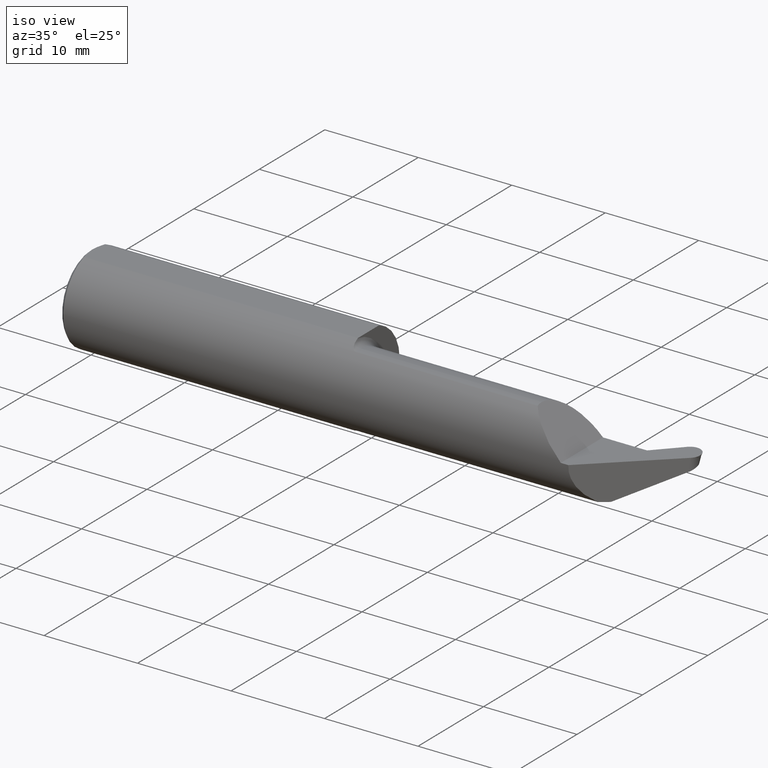
[diagram: clean part render]
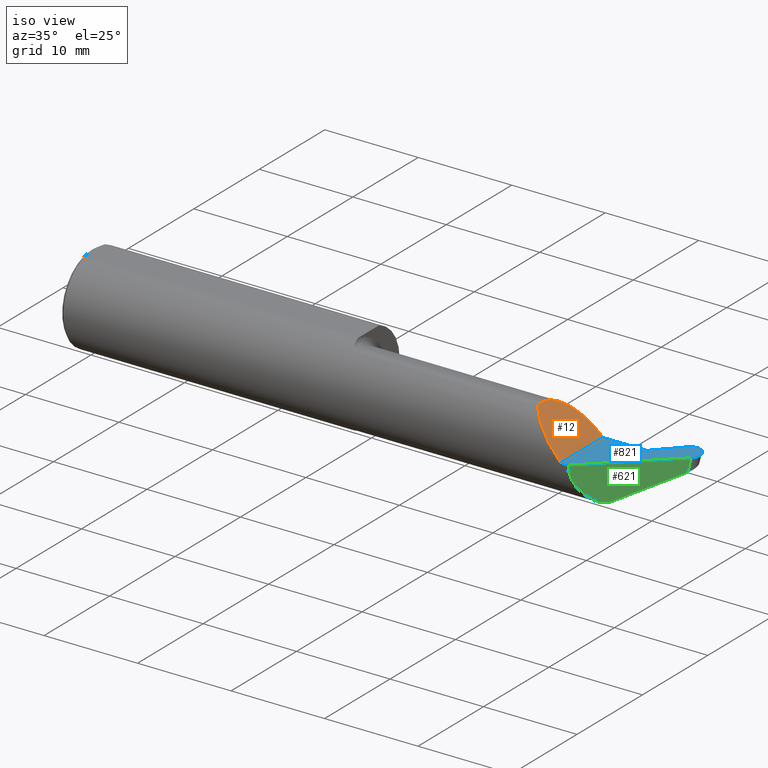
[diagram: same view with three faces highlighted in distinct colors, each labeled with its STEP entity id]
A machine part, iso view with three faces highlighted in distinct colors.
Their STEP definitions:

[orange] entity #12 — the highlighted planar face has unit normal (-0.7071, 0, -0.7071).
#6 = EDGE_LOOP ( 'NONE', ( #199, #384, #219, #587 ) ) ;
#12 = ADVANCED_FACE ( 'NONE', ( #478 ), #551, .F. ) ;
#15 = VERTEX_POINT ( 'NONE', #677 ) ;
#49 = CARTESIAN_POINT ( 'NONE',  ( 1.958844637866757887, -0.1038401262696877214, 0.1511553621332437647 ) ) ;
#143 = EDGE_CURVE ( 'NONE', #15, #474, #502, .T. ) ;
#149 = VERTEX_POINT ( 'NONE', #497 ) ;
#169 = CARTESIAN_POINT ( 'NONE',  ( 1.958000000000002405, -0.08534999999999998144, 0.1519999999999996632 ) ) ;
#199 = ORIENTED_EDGE ( 'NONE', *, *, #390, .F. ) ;
#206 = AXIS2_PLACEMENT_3D ( 'NONE', #813, #362, #803 ) ;
#219 = ORIENTED_EDGE ( 'NONE', *, *, #143, .T. ) ;
#232 = CARTESIAN_POINT ( 'NONE',  ( 1.960526878236144244, -0.1129504686584656276, 0.1494731217638574639 ) ) ;
#236 = CARTESIAN_POINT ( 'NONE',  ( 1.958000000000001961, 0.003689538519289367602, 0.1519999999999996632 ) ) ;
#237 = CARTESIAN_POINT ( 'NONE',  ( 1.958000000000002405, -0.08534999999999998144, 0.1519999999999996632 ) ) ;
#239 = VECTOR ( 'NONE', #318, 39.37007874015748143 ) ;
#274 =( BOUNDED_CURVE ( )  B_SPLINE_CURVE ( 3, ( #507, #767, #442, #232 ),
 .UNSPECIFIED., .F., .T. ) 
 B_SPLINE_CURVE_WITH_KNOTS ( ( 4, 4 ),
 ( 4.712388980384689674, 5.636073291855361767 ),
 .UNSPECIFIED. ) 
 CURVE ( )  GEOMETRIC_REPRESENTATION_ITEM ( )  RATIONAL_B_SPLINE_CURVE ( ( 1.000000000000000000, 0.9301554373620524174, 0.9301554373620524174, 1.000000000000000000 ) ) 
 REPRESENTATION_ITEM ( '' )  );
#318 = DIRECTION ( 'NONE',  ( -0.000000000000000000, 1.000000000000000000, -0.000000000000000000 ) ) ;
#362 = DIRECTION ( 'NONE',  ( -0.7071067811865515695, 0.000000000000000000, -0.7071067811865434649 ) ) ;
#384 = ORIENTED_EDGE ( 'NONE', *, *, #624, .F. ) ;
#390 = EDGE_CURVE ( 'NONE', #149, #425, #491, .T. ) ;
#407 = CARTESIAN_POINT ( 'NONE',  ( 2.020960461480711956, 0.06664999999999969560, 0.08903953851928933516 ) ) ;
#425 = VERTEX_POINT ( 'NONE', #237 ) ;
#442 = CARTESIAN_POINT ( 'NONE',  ( 1.996600064346651049, -0.1606879575236968005, 0.1133999356533502284 ) ) ;
#459 =( BOUNDED_CURVE ( )  B_SPLINE_CURVE ( 3, ( #804, #236, #407, #480 ),
 .UNSPECIFIED., .F., .T. ) 
 B_SPLINE_CURVE_WITH_KNOTS ( ( 4, 4 ),
 ( 0.000000000000000000, 1.570796326794896780 ),
 .UNSPECIFIED. ) 
 CURVE ( )  GEOMETRIC_REPRESENTATION_ITEM ( )  RATIONAL_B_SPLINE_CURVE ( ( 1.000000000000000000, 0.8047378541243649375, 0.8047378541243649375, 1.000000000000000000 ) ) 
 REPRESENTATION_ITEM ( '' )  );
#474 = VERTEX_POINT ( 'NONE', #549 ) ;
#478 = FACE_OUTER_BOUND ( 'NONE', #6, .T. ) ;
#480 = CARTESIAN_POINT ( 'NONE',  ( 2.110000000000000320, 0.06664999999999968172, -4.745349621061712245E-17 ) ) ;
#491 =( BOUNDED_CURVE ( )  B_SPLINE_CURVE ( 3, ( #612, #49, #681, #169 ),
 .UNSPECIFIED., .F., .T. ) 
 B_SPLINE_CURVE_WITH_KNOTS ( ( 4, 4 ),
 ( 6.100590318874937523, 6.283185307179586232 ),
 .UNSPECIFIED. ) 
 CURVE ( )  GEOMETRIC_REPRESENTATION_ITEM ( )  RATIONAL_B_SPLINE_CURVE ( ( 1.000000000000000000, 0.9972235185427065218, 0.9972235185427065218, 1.000000000000000000 ) ) 
 REPRESENTATION_ITEM ( '' )  );
#497 = CARTESIAN_POINT ( 'NONE',  ( 1.960526878236144244, -0.1129504686584656276, 0.1494731217638574639 ) ) ;
#502 = LINE ( 'NONE', #756, #239 ) ;
#507 = CARTESIAN_POINT ( 'NONE',  ( 2.110000000000000320, -0.1873499999999999888, -4.745349621061712245E-17 ) ) ;
#549 = CARTESIAN_POINT ( 'NONE',  ( 2.110000000000000320, 0.06664999999999968172, -4.745349621061712245E-17 ) ) ;
#551 = PLANE ( 'NONE',  #206 ) ;
#587 = ORIENTED_EDGE ( 'NONE', *, *, #686, .F. ) ;
#612 = CARTESIAN_POINT ( 'NONE',  ( 1.960526878236144244, -0.1129504686584656276, 0.1494731217638574639 ) ) ;
#624 = EDGE_CURVE ( 'NONE', #15, #149, #274, .T. ) ;
#677 = CARTESIAN_POINT ( 'NONE',  ( 2.110000000000000320, -0.1873499999999999888, -4.745349621061712245E-17 ) ) ;
#681 = CARTESIAN_POINT ( 'NONE',  ( 1.958000000000001961, -0.09461435486697029884, 0.1519999999999996632 ) ) ;
#686 = EDGE_CURVE ( 'NONE', #425, #474, #459, .T. ) ;
#756 = CARTESIAN_POINT ( 'NONE',  ( 2.110000000000000320, 0.2000000000000000111, -4.745349621061712245E-17 ) ) ;
#767 = CARTESIAN_POINT ( 'NONE',  ( 2.050165707162854289, -0.1873499999999999888, 0.05983429283714609970 ) ) ;
#803 = DIRECTION ( 'NONE',  ( -0.7071067811865434649, 0.000000000000000000, 0.7071067811865515695 ) ) ;
#804 = CARTESIAN_POINT ( 'NONE',  ( 1.958000000000002405, -0.08534999999999998144, 0.1519999999999996632 ) ) ;
#813 = CARTESIAN_POINT ( 'NONE',  ( 2.110000000000000320, -0.1873500000000000165, -4.745349621061712245E-17 ) ) ;

[blue] entity #821 — the highlighted planar face has unit normal (-0, 0, -1).
#15 = VERTEX_POINT ( 'NONE', #677 ) ;
#16 = EDGE_CURVE ( 'NONE', #322, #15, #734, .T. ) ;
#43 = ORIENTED_EDGE ( 'NONE', *, *, #143, .F. ) ;
#70 = CARTESIAN_POINT ( 'NONE',  ( 2.467767019416892360, 0.1514603896167064090, -4.745349621061710396E-17 ) ) ;
#74 = CARTESIAN_POINT ( 'NONE',  ( 2.431132501251490829, 0.1845805313186274499, -4.745349621061712245E-17 ) ) ;
#86 = CARTESIAN_POINT ( 'NONE',  ( 2.141702867418015188, -0.1873500000000000165, -1.767807840146319986E-17 ) ) ;
#115 = EDGE_LOOP ( 'NONE', ( #634, #645, #231, #450, #43, #380 ) ) ;
#123 = VERTEX_POINT ( 'NONE', #512 ) ;
#133 = CARTESIAN_POINT ( 'NONE',  ( 2.448246970082820440, 0.1779498025175149378, -4.745349621061711013E-17 ) ) ;
#143 = EDGE_CURVE ( 'NONE', #15, #474, #502, .T. ) ;
#147 = CARTESIAN_POINT ( 'NONE',  ( 2.468948145148677664, 0.1423966646996534247, -4.745349621061712245E-17 ) ) ;
#156 = CARTESIAN_POINT ( 'NONE',  ( 2.169027510930384040, -0.1618693577013822493, 0.000000000000000000 ) ) ;
#163 = LINE ( 'NONE', #230, #439 ) ;
#168 = DIRECTION ( 'NONE',  ( -0.000000000000000000, 0.000000000000000000, -1.000000000000000000 ) ) ;
#170 = DIRECTION ( 'NONE',  ( -1.000000000000000000, -0.000000000000000000, -0.000000000000000000 ) ) ;
#175 = CARTESIAN_POINT ( 'NONE',  ( 2.453681397116281193, 0.1035746854946824336, 0.000000000000000000 ) ) ;
#209 = AXIS2_PLACEMENT_3D ( 'NONE', #662, #168, #462 ) ;
#214 = LINE ( 'NONE', #218, #601 ) ;
#217 = FACE_OUTER_BOUND ( 'NONE', #115, .T. ) ;
#218 = CARTESIAN_POINT ( 'NONE',  ( 2.153755892154001650, -0.08534999999999998144, -4.745349621061712245E-17 ) ) ;
#230 = CARTESIAN_POINT ( 'NONE',  ( 1.169000000000000039, 0.06664999999999968172, -4.745349621061712245E-17 ) ) ;
#231 = ORIENTED_EDGE ( 'NONE', *, *, #313, .F. ) ;
#239 = VECTOR ( 'NONE', #318, 39.37007874015748143 ) ;
#313 = EDGE_CURVE ( 'NONE', #742, #123, #214, .T. ) ;
#318 = DIRECTION ( 'NONE',  ( -0.000000000000000000, 1.000000000000000000, -0.000000000000000000 ) ) ;
#322 = VERTEX_POINT ( 'NONE', #86 ) ;
#325 = CARTESIAN_POINT ( 'NONE',  ( 2.392332127941882103, 0.1704916902143809587, -4.745349621061712245E-17 ) ) ;
#355 = DIRECTION ( 'NONE',  ( -0.7313537016191670181, -0.6819983600625021403, 0.000000000000000000 ) ) ;
#369 = EDGE_CURVE ( 'NONE', #474, #742, #163, .T. ) ;
#380 = ORIENTED_EDGE ( 'NONE', *, *, #16, .F. ) ;
#382 = CARTESIAN_POINT ( 'NONE',  ( 2.412939162104926538, 0.1832131339247096424, -4.745349621061712245E-17 ) ) ;
#388 = VERTEX_POINT ( 'NONE', #463 ) ;
#397 = CARTESIAN_POINT ( 'NONE',  ( 2.409969334684518572, 0.1822622641441629388, -4.745349621061712862E-17 ) ) ;
#421 = CARTESIAN_POINT ( 'NONE',  ( 2.462949161049848179, 0.1122338268527463268, -4.745349621061713478E-17 ) ) ;
#431 = CARTESIAN_POINT ( 'NONE',  ( 2.461000084745684102, 0.1647719059417566689, -4.745349621061712245E-17 ) ) ;
#439 = VECTOR ( 'NONE', #586, 39.37007874015748143 ) ;
#446 = CARTESIAN_POINT ( 'NONE',  ( 2.396612017884213852, 0.1750724780321066543, -4.745349621061711013E-17 ) ) ;
#450 = ORIENTED_EDGE ( 'NONE', *, *, #369, .F. ) ;
#458 = DIRECTION ( 'NONE',  ( 0.6819983600625172393, 0.7313537016191530293, 0.000000000000000000 ) ) ;
#462 = DIRECTION ( 'NONE',  ( -1.000000000000000000, 0.000000000000000000, 0.000000000000000000 ) ) ;
#463 = CARTESIAN_POINT ( 'NONE',  ( 2.453681397116281193, 0.1035746854946824336, 0.000000000000000000 ) ) ;
#474 = VERTEX_POINT ( 'NONE', #549 ) ;
#502 = LINE ( 'NONE', #756, #239 ) ;
#511 = CARTESIAN_POINT ( 'NONE',  ( 2.467923296528796939, 0.1230023735455202660, -4.745349621061712862E-17 ) ) ;
#512 = CARTESIAN_POINT ( 'NONE',  ( 2.392332127941882103, 0.1704916902143809587, -4.745349621061712245E-17 ) ) ;
#523 = CARTESIAN_POINT ( 'NONE',  ( 2.421899764801102251, 0.1847030445123118703, -4.745349621061712862E-17 ) ) ;
#543 = EDGE_CURVE ( 'NONE', #388, #123, #626, .T. ) ;
#549 = CARTESIAN_POINT ( 'NONE',  ( 2.110000000000000320, 0.06664999999999968172, -4.745349621061712245E-17 ) ) ;
#586 = DIRECTION ( 'NONE',  ( 1.000000000000000000, 0.000000000000000000, 0.000000000000000000 ) ) ;
#588 = LINE ( 'NONE', #156, #616 ) ;
#601 = VECTOR ( 'NONE', #458, 39.37007874015748143 ) ;
#605 = VECTOR ( 'NONE', #170, 39.37007874015748143 ) ;
#616 = VECTOR ( 'NONE', #355, 39.37007874015748143 ) ;
#626 = B_SPLINE_CURVE_WITH_KNOTS ( 'NONE', 3,
 ( #175, #421, #511, #147, #70, #650, #431, #709, #701, #133, #704, #74, #523, #775, #382, #397, #643, #446, #325 ),
 .UNSPECIFIED., .F., .F.,
 ( 4, 2, 1, 2, 2, 2, 2, 2, 2, 4 ),
 ( 0.000000000000000000, 0.2500000000000031086, 0.3750000000000044964, 0.4375000000000036637, 0.5000000000000027756, 0.6249999999999981126, 0.7499999999999933387, 0.8124999999999937828, 0.8749999999999942268, 1.000000000000000000 ),
 .UNSPECIFIED. ) ;
#634 = ORIENTED_EDGE ( 'NONE', *, *, #771, .F. ) ;
#643 = CARTESIAN_POINT ( 'NONE',  ( 2.401556305812663439, 0.1785877199917680902, -4.745349621061710396E-17 ) ) ;
#645 = ORIENTED_EDGE ( 'NONE', *, *, #543, .T. ) ;
#650 = CARTESIAN_POINT ( 'NONE',  ( 2.464045568622513116, 0.1595739835437393339, -4.745349621061712862E-17 ) ) ;
#662 = CARTESIAN_POINT ( 'NONE',  ( 2.110000000000000320, 0.2000000000000000111, -4.745349621061712245E-17 ) ) ;
#677 = CARTESIAN_POINT ( 'NONE',  ( 2.110000000000000320, -0.1873499999999999888, -4.745349621061712245E-17 ) ) ;
#687 = CARTESIAN_POINT ( 'NONE',  ( 2.500000000000000000, -0.1873499999999999888, -4.745349621061712245E-17 ) ) ;
#701 = CARTESIAN_POINT ( 'NONE',  ( 2.453023039036284825, 0.1743261084839769215, -4.745349621061712245E-17 ) ) ;
#704 = CARTESIAN_POINT ( 'NONE',  ( 2.437051764764914807, 0.1832212601429893117, -4.745349621061712245E-17 ) ) ;
#709 = CARTESIAN_POINT ( 'NONE',  ( 2.459150219253846359, 0.1673166227726625710, -4.745349621061714094E-17 ) ) ;
#734 = LINE ( 'NONE', #687, #605 ) ;
#742 = VERTEX_POINT ( 'NONE', #783 ) ;
#756 = CARTESIAN_POINT ( 'NONE',  ( 2.110000000000000320, 0.2000000000000000111, -4.745349621061712245E-17 ) ) ;
#771 = EDGE_CURVE ( 'NONE', #388, #322, #588, .T. ) ;
#775 = CARTESIAN_POINT ( 'NONE',  ( 2.418876612735148424, 0.1844213974872827289, -4.745349621061714094E-17 ) ) ;
#783 = CARTESIAN_POINT ( 'NONE',  ( 2.295498185246931833, 0.06665000000000129154, 6.897916184002264281E-15 ) ) ;
#805 = PLANE ( 'NONE',  #209 ) ;
#821 = ADVANCED_FACE ( 'NONE', ( #217 ), #805, .F. ) ;

[green] entity #621 — the highlighted planar face has unit normal (-0.6816, 0.7309, 0.0349).
#3 = ORIENTED_EDGE ( 'NONE', *, *, #473, .T. ) ;
#7 = CARTESIAN_POINT ( 'NONE',  ( 2.243301529027789787, -0.08534999999999996756, -0.1519999999999996632 ) ) ;
#25 = FACE_OUTER_BOUND ( 'NONE', #516, .T. ) ;
#34 = CARTESIAN_POINT ( 'NONE',  ( 2.451182245700235907, 0.1021114557563832931, -0.01816336498588111761 ) ) ;
#41 = LINE ( 'NONE', #174, #561 ) ;
#66 = DIRECTION ( 'NONE',  ( -0.6815829050885316986, 0.7309081807046564627, 0.03489949670248779223 ) ) ;
#86 = CARTESIAN_POINT ( 'NONE',  ( 2.141702867418015188, -0.1873500000000000165, -1.767807840146319986E-17 ) ) ;
#98 = CARTESIAN_POINT ( 'NONE',  ( 2.448683094284190620, 0.1006482260180835281, -0.03632672997176230462 ) ) ;
#113 = CARTESIAN_POINT ( 'NONE',  ( 2.243301529027789787, -0.08534999999999996756, -0.1519999999999996632 ) ) ;
#127 = ORIENTED_EDGE ( 'NONE', *, *, #714, .T. ) ;
#150 = CARTESIAN_POINT ( 'NONE',  ( 2.213833035312448683, -0.1129504686584656831, -0.1494731217638574639 ) ) ;
#156 = CARTESIAN_POINT ( 'NONE',  ( 2.169027510930384040, -0.1618693577013822493, 0.000000000000000000 ) ) ;
#174 = CARTESIAN_POINT ( 'NONE',  ( 2.423946661898040755, 0.07897008013997777742, -0.06541583951153338850 ) ) ;
#191 = ORIENTED_EDGE ( 'NONE', *, *, #771, .T. ) ;
#197 = CARTESIAN_POINT ( 'NONE',  ( 2.546610177810151310, 0.2020557698480204278, -0.2476242554592702205 ) ) ;
#246 =( BOUNDED_CURVE ( )  B_SPLINE_CURVE ( 3, ( #7, #636, #269, #514 ),
 .UNSPECIFIED., .F., .T. ) 
 B_SPLINE_CURVE_WITH_KNOTS ( ( 4, 4 ),
 ( 1.523084436873743730, 1.550918134938522597 ),
 .UNSPECIFIED. ) 
 CURVE ( )  GEOMETRIC_REPRESENTATION_ITEM ( )  RATIONAL_B_SPLINE_CURVE ( ( 1.000000000000000000, 0.9999354414796474133, 0.9999354414796474133, 1.000000000000000000 ) ) 
 REPRESENTATION_ITEM ( '' )  );
#269 = CARTESIAN_POINT ( 'NONE',  ( 2.246327081144900983, -0.08252956411674720882, -0.1519803738930390336 ) ) ;
#291 = CARTESIAN_POINT ( 'NONE',  ( 2.138639136373742033, -0.1873500000000000720, -0.05983429283714602337 ) ) ;
#296 = CARTESIAN_POINT ( 'NONE',  ( 2.247840851845028354, -0.08111982414012910980, -0.1519411254802152111 ) ) ;
#322 = VERTEX_POINT ( 'NONE', #86 ) ;
#331 = ORIENTED_EDGE ( 'NONE', *, *, #663, .F. ) ;
#354 = AXIS2_PLACEMENT_3D ( 'NONE', #197, #66, #713 ) ;
#355 = DIRECTION ( 'NONE',  ( -0.7313537016191670181, -0.6819983600625021403, 0.000000000000000000 ) ) ;
#356 = DIRECTION ( 'NONE',  ( -0.6954206866754740757, -0.6321757989175352810, -0.3416779592054304260 ) ) ;
#359 =( BOUNDED_CURVE ( )  B_SPLINE_CURVE ( 3, ( #150, #528, #291, #736 ),
 .UNSPECIFIED., .F., .T. ) 
 B_SPLINE_CURVE_WITH_KNOTS ( ( 4, 4 ),
 ( 5.407212885630068300, 6.330897197100739504 ),
 .UNSPECIFIED. ) 
 CURVE ( )  GEOMETRIC_REPRESENTATION_ITEM ( )  RATIONAL_B_SPLINE_CURVE ( ( 1.000000000000000000, 0.9301554373620526395, 0.9301554373620526395, 1.000000000000000000 ) ) 
 REPRESENTATION_ITEM ( '' )  );
#388 = VERTEX_POINT ( 'NONE', #463 ) ;
#401 = CARTESIAN_POINT ( 'NONE',  ( 2.453681397116281193, 0.1035746854946824336, 0.000000000000000000 ) ) ;
#415 = CARTESIAN_POINT ( 'NONE',  ( 2.213833035312448683, -0.1129504686584656831, -0.1494731217638574639 ) ) ;
#441 = ORIENTED_EDGE ( 'NONE', *, *, #777, .F. ) ;
#456 = PLANE ( 'NONE',  #354 ) ;
#463 = CARTESIAN_POINT ( 'NONE',  ( 2.453681397116281193, 0.1035746854946824336, 0.000000000000000000 ) ) ;
#473 = EDGE_CURVE ( 'NONE', #700, #631, #694, .T. ) ;
#485 = CARTESIAN_POINT ( 'NONE',  ( 2.233366724749886068, -0.09461435486697031272, -0.1519999999999996632 ) ) ;
#487 = CARTESIAN_POINT ( 'NONE',  ( 2.213833035312448683, -0.1129504686584656831, -0.1494731217638574639 ) ) ;
#514 = CARTESIAN_POINT ( 'NONE',  ( 2.247840851845028354, -0.08111982414012910980, -0.1519411254802152111 ) ) ;
#516 = EDGE_LOOP ( 'NONE', ( #441, #127, #191, #331, #3, #712 ) ) ;
#528 = CARTESIAN_POINT ( 'NONE',  ( 2.164487922858646662, -0.1606879575236968560, -0.1133999356533501590 ) ) ;
#545 = CARTESIAN_POINT ( 'NONE',  ( 2.243301529027789787, -0.08534999999999996756, -0.1519999999999996632 ) ) ;
#561 = VECTOR ( 'NONE', #356, 39.37007874015748854 ) ;
#588 = LINE ( 'NONE', #156, #616 ) ;
#591 = EDGE_CURVE ( 'NONE', #631, #649, #246, .T. ) ;
#593 = CARTESIAN_POINT ( 'NONE',  ( 2.446183942868147110, 0.09918499627978322186, -0.05449009495759068317 ) ) ;
#597 = CARTESIAN_POINT ( 'NONE',  ( 2.446183942868147110, 0.09918499627978322186, -0.05449009495759068317 ) ) ;
#616 = VECTOR ( 'NONE', #355, 39.37007874015748143 ) ;
#621 = ADVANCED_FACE ( 'NONE', ( #25 ), #456, .F. ) ;
#631 = VERTEX_POINT ( 'NONE', #545 ) ;
#636 = CARTESIAN_POINT ( 'NONE',  ( 2.244813875848860274, -0.08393971377387955679, -0.1519999999999996632 ) ) ;
#641 = VERTEX_POINT ( 'NONE', #593 ) ;
#649 = VERTEX_POINT ( 'NONE', #296 ) ;
#663 = EDGE_CURVE ( 'NONE', #700, #322, #359, .T. ) ;
#694 =( BOUNDED_CURVE ( )  B_SPLINE_CURVE ( 3, ( #487, #746, #485, #113 ),
 .UNSPECIFIED., .F., .T. ) 
 B_SPLINE_CURVE_WITH_KNOTS ( ( 4, 4 ),
 ( 1.340489448569094355, 1.523084436873743730 ),
 .UNSPECIFIED. ) 
 CURVE ( )  GEOMETRIC_REPRESENTATION_ITEM ( )  RATIONAL_B_SPLINE_CURVE ( ( 1.000000000000000000, 0.9972235185427065218, 0.9972235185427065218, 1.000000000000000000 ) ) 
 REPRESENTATION_ITEM ( '' )  );
#700 = VERTEX_POINT ( 'NONE', #415 ) ;
#712 = ORIENTED_EDGE ( 'NONE', *, *, #591, .T. ) ;
#713 = DIRECTION ( 'NONE',  ( -0.7313537016191666851, -0.6819983600625023623, 0.000000000000000000 ) ) ;
#714 = EDGE_CURVE ( 'NONE', #641, #388, #785, .T. ) ;
#736 = CARTESIAN_POINT ( 'NONE',  ( 2.141702867418015188, -0.1873500000000000165, -1.767807840146319986E-17 ) ) ;
#746 = CARTESIAN_POINT ( 'NONE',  ( 2.223516544669093875, -0.1038401262696877630, -0.1511553621332437647 ) ) ;
#771 = EDGE_CURVE ( 'NONE', #388, #322, #588, .T. ) ;
#777 = EDGE_CURVE ( 'NONE', #641, #649, #41, .T. ) ;
#785 = B_SPLINE_CURVE_WITH_KNOTS ( 'NONE', 3,
 ( #597, #98, #34, #401 ),
 .UNSPECIFIED., .F., .F.,
 ( 4, 4 ),
 ( 0.000000000000000000, 1.000000000000000000 ),
 .UNSPECIFIED. ) ;